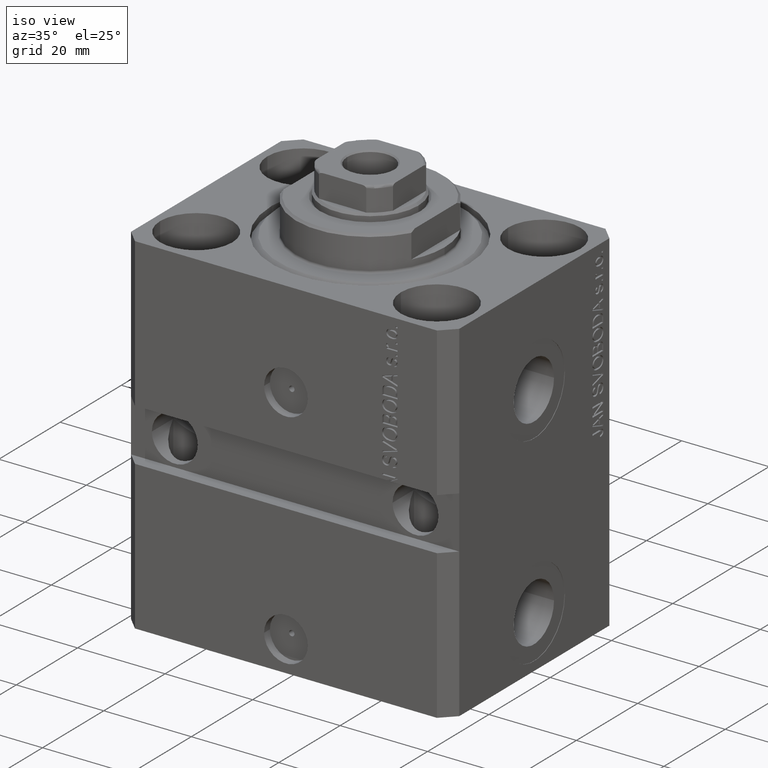
[diagram: clean part render]
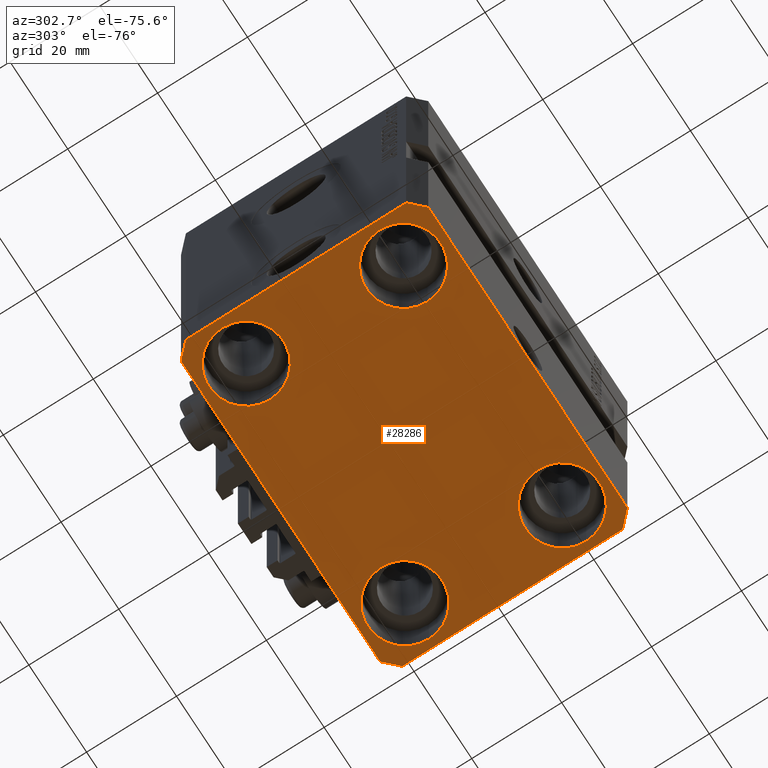
[diagram: tour spotlight — one face highlighted and labeled with its STEP entity id]
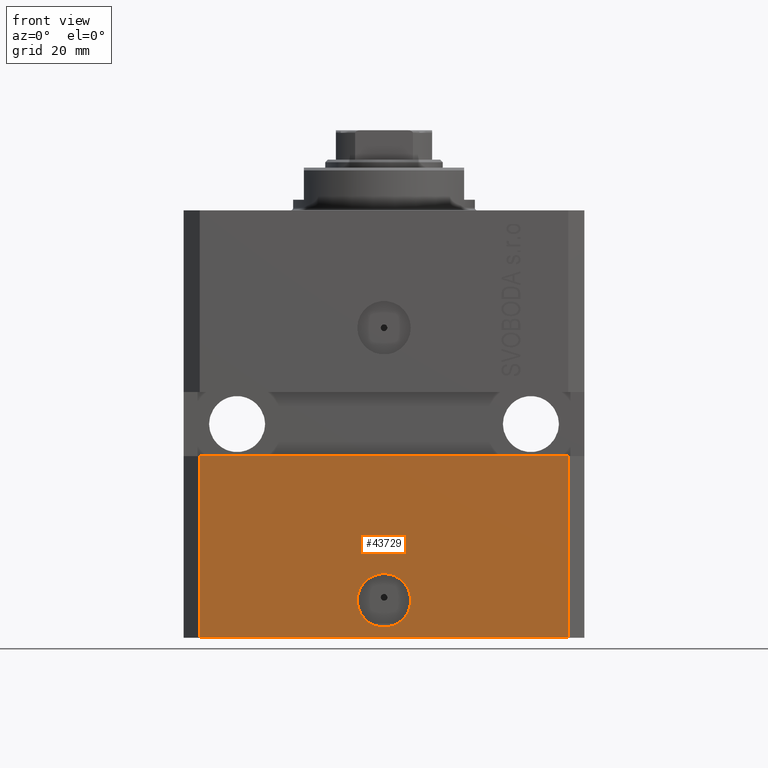
[diagram: tour spotlight — one face highlighted and labeled with its STEP entity id]
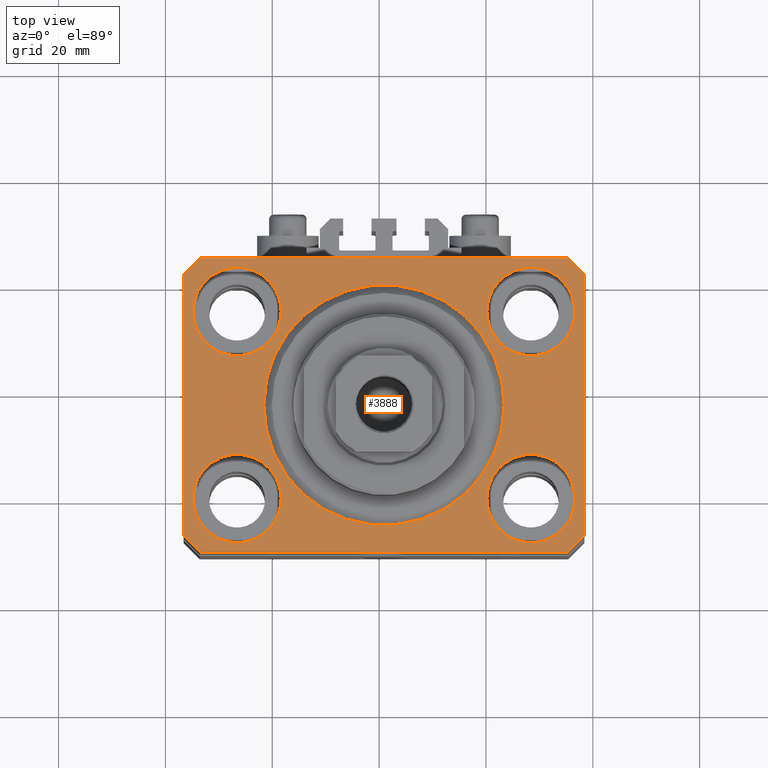
[diagram: tour spotlight — one face highlighted and labeled with its STEP entity id]
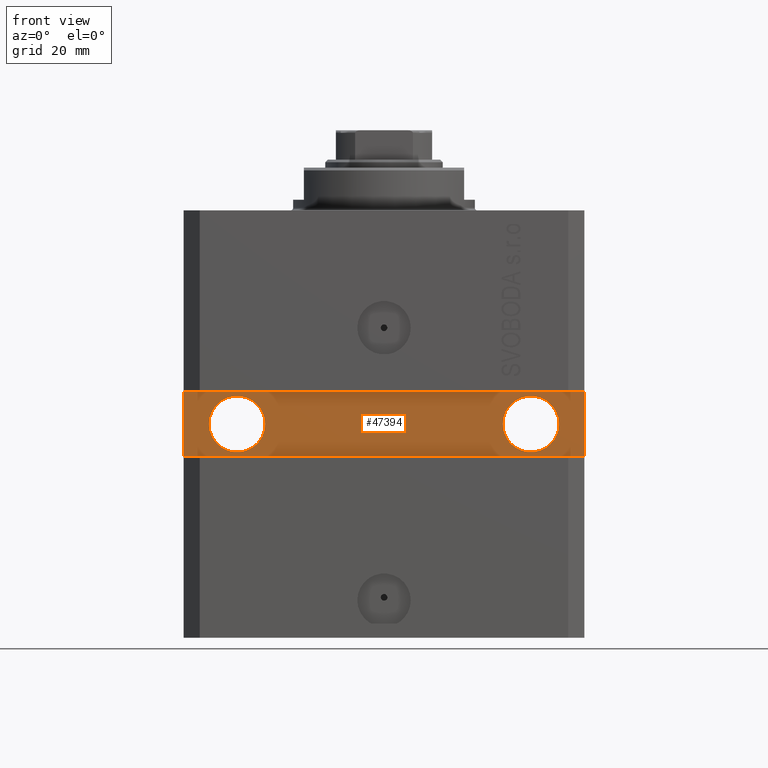
[diagram: tour spotlight — one face highlighted and labeled with its STEP entity id]
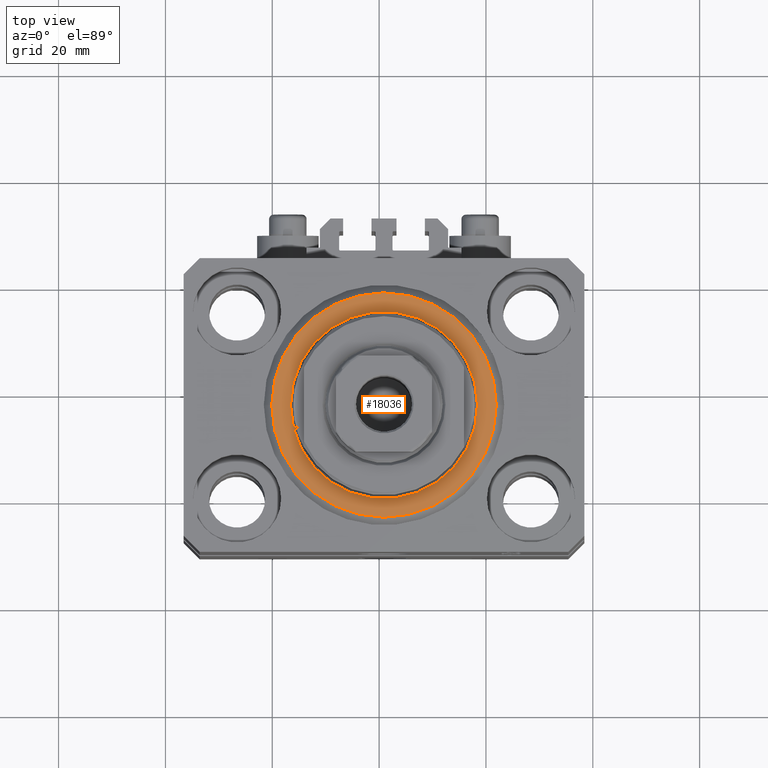
[diagram: tour spotlight — one face highlighted and labeled with its STEP entity id]
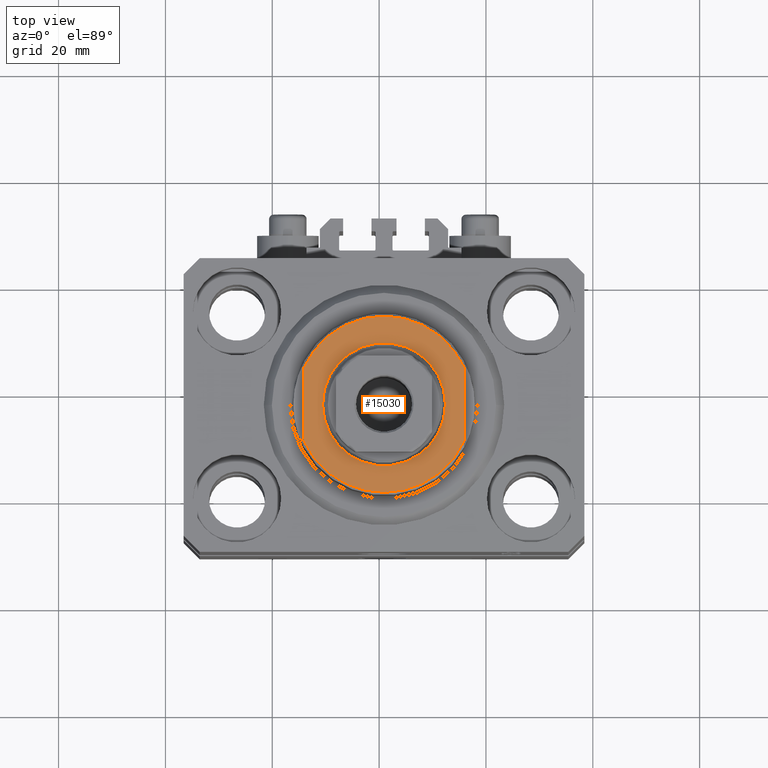
[diagram: tour spotlight — one face highlighted and labeled with its STEP entity id]
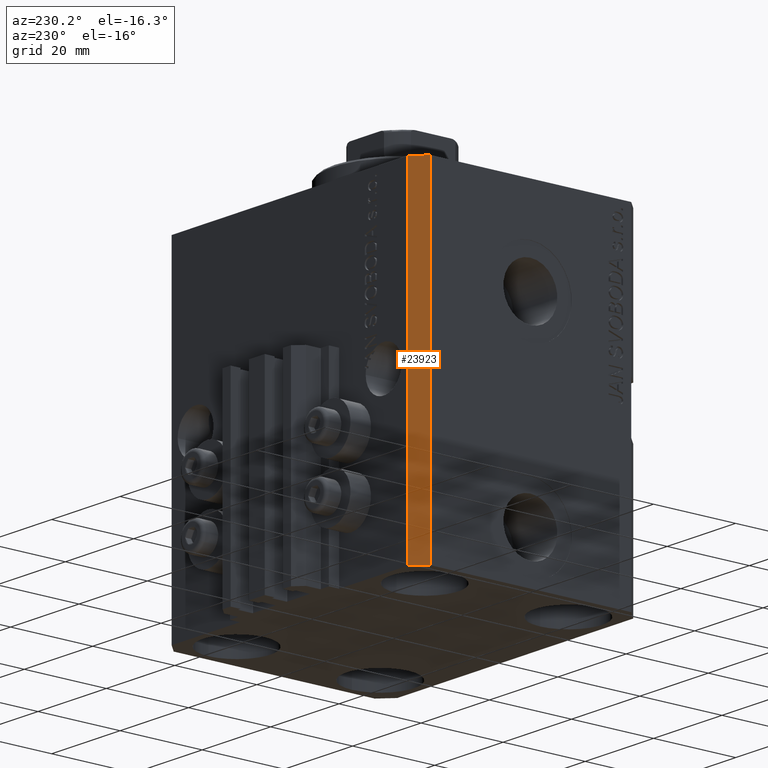
[diagram: tour spotlight — one face highlighted and labeled with its STEP entity id]
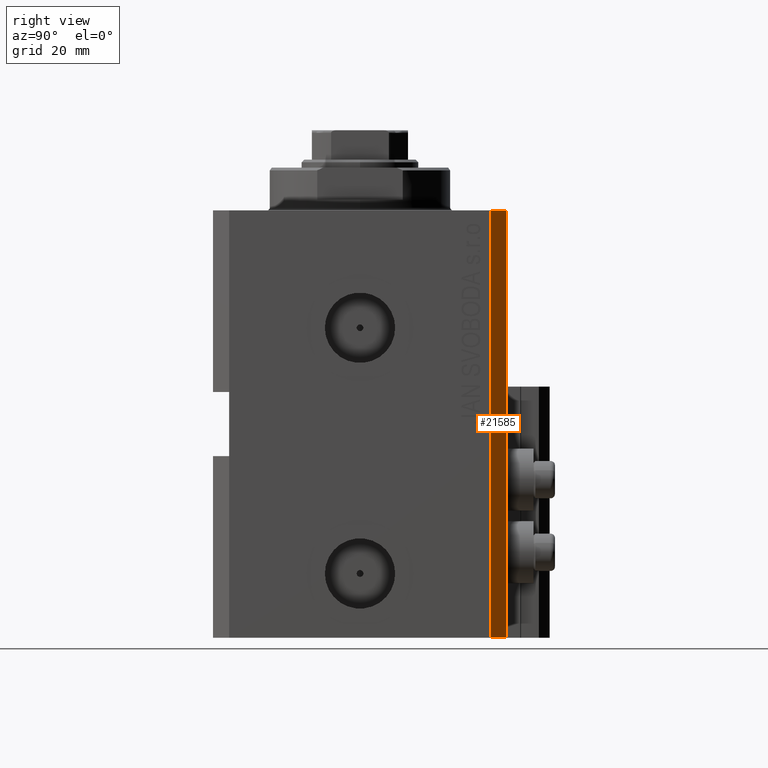
[diagram: tour spotlight — one face highlighted and labeled with its STEP entity id]
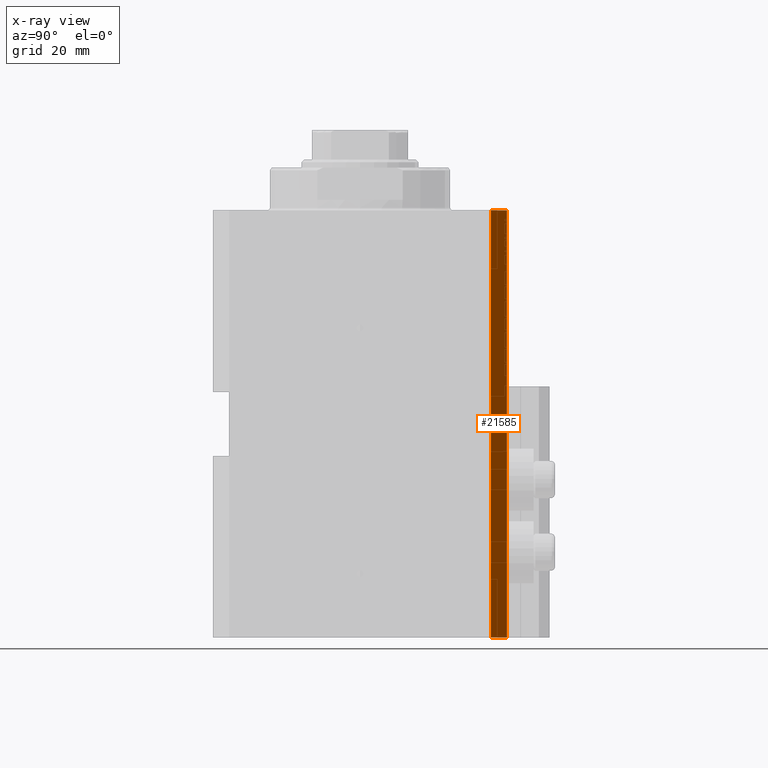
[diagram: x-ray of the same camera — body ghosted, this tour face saturated]
A machine part: a face-by-face anatomy tour. The part has 1080 B-rep faces; the first image is the clean iso view, then the 8 largest visible faces are spotlighted one at a time (largest first), each with its STEP entity span.

Face 1 — auxiliary view, entity #28286. In plain terms, the highlighted planar face has unit normal (0, 0, 1).
Definition (entity closure, byte-faithful):
#1041 = ORIENTED_EDGE ( 'NONE', *, *, #37772, .T. ) ;
#1663 = FACE_OUTER_BOUND ( 'NONE', #24452, .T. ) ;
#3213 = ORIENTED_EDGE ( 'NONE', *, *, #34445, .F. ) ;
#3609 = CARTESIAN_POINT ( 'NONE',  ( 35.74999999999999289, 17.50000000000001066, -80.00000000000000000 ) ) ;
#4189 = CARTESIAN_POINT ( 'NONE',  ( 37.50000000000051870, 24.49999999999995381, -80.00000000000000000 ) ) ;
#4438 = CARTESIAN_POINT ( 'NONE',  ( 27.50000000000000355, -17.50000000000000000, -80.00000000000000000 ) ) ;
#4613 = ORIENTED_EDGE ( 'NONE', *, *, #17066, .T. ) ;
#4705 = DIRECTION ( 'NONE',  ( 1.000000000000000000, 0.000000000000000000, 0.000000000000000000 ) ) ;
#4758 = CARTESIAN_POINT ( 'NONE',  ( -34.49999999999999289, 27.50000000000000000, -80.00000000000000000 ) ) ;
#5135 = LINE ( 'NONE', #27427, #6138 ) ;
#5588 = CIRCLE ( 'NONE', #36974, 8.249999999999992895 ) ;
#6138 = VECTOR ( 'NONE', #19762, 1000.000000000000114 ) ;
#6314 = ORIENTED_EDGE ( 'NONE', *, *, #10620, .F. ) ;
#6341 = LINE ( 'NONE', #31757, #30716 ) ;
#6609 = EDGE_LOOP ( 'NONE', ( #13990, #28150 ) ) ;
#6615 = VERTEX_POINT ( 'NONE', #32302 ) ;
#7090 = VECTOR ( 'NONE', #28814, 1000.000000000000000 ) ;
#7325 = DIRECTION ( 'NONE',  ( 1.076236605503979380E-14, 1.000000000000000000, 0.000000000000000000 ) ) ;
#7652 = AXIS2_PLACEMENT_3D ( 'NONE', #12389, #11042, #25426 ) ;
#7784 = AXIS2_PLACEMENT_3D ( 'NONE', #4438, #26980, #44445 ) ;
#8700 = ORIENTED_EDGE ( 'NONE', *, *, #22918, .T. ) ;
#9102 = DIRECTION ( 'NONE',  ( 1.000000000000000000, 0.000000000000000000, 0.000000000000000000 ) ) ;
#9324 = FACE_BOUND ( 'NONE', #6609, .T. ) ;
#9528 = DIRECTION ( 'NONE',  ( -0.000000000000000000, -0.000000000000000000, 1.000000000000000000 ) ) ;
#10476 = DIRECTION ( 'NONE',  ( 1.000000000000000000, 0.000000000000000000, 0.000000000000000000 ) ) ;
#10566 = LINE ( 'NONE', #35729, #31332 ) ;
#10620 = EDGE_CURVE ( 'NONE', #21709, #26618, #36538, .T. ) ;
#11042 = DIRECTION ( 'NONE',  ( -0.000000000000000000, -0.000000000000000000, 1.000000000000000000 ) ) ;
#11526 = LINE ( 'NONE', #37858, #37049 ) ;
#12389 = CARTESIAN_POINT ( 'NONE',  ( 27.49999999999999645, 17.50000000000001066, -80.00000000000000000 ) ) ;
#12609 = DIRECTION ( 'NONE',  ( -0.000000000000000000, -0.000000000000000000, 1.000000000000000000 ) ) ;
#12826 = CARTESIAN_POINT ( 'NONE',  ( -37.49999999999999289, 24.50000000000000000, -80.00000000000000000 ) ) ;
#12910 = LINE ( 'NONE', #37839, #22462 ) ;
#13121 = VERTEX_POINT ( 'NONE', #37877 ) ;
#13144 = CIRCLE ( 'NONE', #35356, 8.250000000000000000 ) ;
#13227 = VERTEX_POINT ( 'NONE', #17972 ) ;
#13840 = AXIS2_PLACEMENT_3D ( 'NONE', #28677, #20998, #25298 ) ;
#13906 = AXIS2_PLACEMENT_3D ( 'NONE', #46150, #9528, #10476 ) ;
#13990 = ORIENTED_EDGE ( 'NONE', *, *, #35542, .T. ) ;
#14186 = LINE ( 'NONE', #18252, #7090 ) ;
#14480 = CARTESIAN_POINT ( 'NONE',  ( -35.75000000000000711, -17.50000000000000000, -80.00000000000000000 ) ) ;
#15301 = EDGE_CURVE ( 'NONE', #19728, #13121, #6341, .T. ) ;
#15490 = ORIENTED_EDGE ( 'NONE', *, *, #16206, .F. ) ;
#15611 = EDGE_LOOP ( 'NONE', ( #1041, #35017 ) ) ;
#15984 = EDGE_CURVE ( 'NONE', #32457, #42390, #45982, .T. ) ;
#16206 = EDGE_CURVE ( 'NONE', #16354, #19728, #41583, .T. ) ;
#16284 = DIRECTION ( 'NONE',  ( 1.000000000000000000, 0.000000000000000000, -0.000000000000000000 ) ) ;
#16354 = VERTEX_POINT ( 'NONE', #37694 ) ;
#16518 = CARTESIAN_POINT ( 'NONE',  ( 0.000000000000000000, 0.000000000000000000, -80.00000000000000000 ) ) ;
#16755 = FACE_BOUND ( 'NONE', #34217, .T. ) ;
#17066 = EDGE_CURVE ( 'NONE', #6615, #45434, #13144, .T. ) ;
#17972 = CARTESIAN_POINT ( 'NONE',  ( -19.25000000000000355, -17.50000000000000000, -80.00000000000000000 ) ) ;
#17977 = AXIS2_PLACEMENT_3D ( 'NONE', #38043, #38515, #19856 ) ;
#18252 = CARTESIAN_POINT ( 'NONE',  ( -34.49999999999998579, -27.49999999999999645, -80.00000000000000000 ) ) ;
#19179 = CIRCLE ( 'NONE', #13840, 8.250000000000000000 ) ;
#19354 = CARTESIAN_POINT ( 'NONE',  ( 19.25000000000000000, -17.50000000000000000, -80.00000000000000000 ) ) ;
#19665 = CARTESIAN_POINT ( 'NONE',  ( -27.50000000000000355, -17.50000000000000000, -80.00000000000000000 ) ) ;
#19728 = VERTEX_POINT ( 'NONE', #47114 ) ;
#19762 = DIRECTION ( 'NONE',  ( 0.7071067811865474617, 0.7071067811865474617, 0.000000000000000000 ) ) ;
#19856 = DIRECTION ( 'NONE',  ( 1.000000000000000000, 0.000000000000000000, 0.000000000000000000 ) ) ;
#20998 = DIRECTION ( 'NONE',  ( -0.000000000000000000, -0.000000000000000000, 1.000000000000000000 ) ) ;
#21026 = AXIS2_PLACEMENT_3D ( 'NONE', #19665, #45723, #9102 ) ;
#21709 = VERTEX_POINT ( 'NONE', #43930 ) ;
#22377 = ORIENTED_EDGE ( 'NONE', *, *, #47310, .F. ) ;
#22462 = VECTOR ( 'NONE', #23719, 1000.000000000000000 ) ;
#22918 = EDGE_CURVE ( 'NONE', #30495, #37150, #5588, .T. ) ;
#23418 = ORIENTED_EDGE ( 'NONE', *, *, #39551, .F. ) ;
#23486 = FACE_BOUND ( 'NONE', #32083, .T. ) ;
#23719 = DIRECTION ( 'NONE',  ( -0.7071067811865471286, -0.7071067811865479058, 0.000000000000000000 ) ) ;
#23746 = VERTEX_POINT ( 'NONE', #46001 ) ;
#24452 = EDGE_LOOP ( 'NONE', ( #39559, #22377, #6314, #3213, #23418, #30141, #15490, #26149 ) ) ;
#24831 = CIRCLE ( 'NONE', #21026, 8.250000000000000000 ) ;
#25210 = AXIS2_PLACEMENT_3D ( 'NONE', #16518, #27319, #16284 ) ;
#25298 = DIRECTION ( 'NONE',  ( 1.000000000000000000, 0.000000000000000000, 0.000000000000000000 ) ) ;
#25426 = DIRECTION ( 'NONE',  ( 1.000000000000000000, 0.000000000000000000, 0.000000000000000000 ) ) ;
#26149 = ORIENTED_EDGE ( 'NONE', *, *, #42124, .F. ) ;
#26618 = VERTEX_POINT ( 'NONE', #4189 ) ;
#26980 = DIRECTION ( 'NONE',  ( -0.000000000000000000, -0.000000000000000000, 1.000000000000000000 ) ) ;
#27319 = DIRECTION ( 'NONE',  ( 0.000000000000000000, 0.000000000000000000, 1.000000000000000000 ) ) ;
#27427 = CARTESIAN_POINT ( 'NONE',  ( 34.49999999999999289, -27.49999999999999645, -80.00000000000000000 ) ) ;
#28127 = EDGE_CURVE ( 'NONE', #30406, #40100, #10566, .T. ) ;
#28150 = ORIENTED_EDGE ( 'NONE', *, *, #44337, .T. ) ;
#28286 = ADVANCED_FACE ( 'NONE', ( #9324, #31380, #16755, #23486, #1663 ), #45946, .F. ) ;
#28325 = CIRCLE ( 'NONE', #7652, 8.249999999999992895 ) ;
#28564 = DIRECTION ( 'NONE',  ( -1.000000000000000000, 0.000000000000000000, 0.000000000000000000 ) ) ;
#28677 = CARTESIAN_POINT ( 'NONE',  ( -27.50000000000000355, -17.50000000000000000, -80.00000000000000000 ) ) ;
#28727 = ORIENTED_EDGE ( 'NONE', *, *, #45226, .T. ) ;
#28814 = DIRECTION ( 'NONE',  ( 1.000000000000000000, 0.000000000000000000, 0.000000000000000000 ) ) ;
#30141 = ORIENTED_EDGE ( 'NONE', *, *, #15301, .F. ) ;
#30406 = VERTEX_POINT ( 'NONE', #31916 ) ;
#30495 = VERTEX_POINT ( 'NONE', #3609 ) ;
#30716 = VECTOR ( 'NONE', #46322, 1000.000000000000000 ) ;
#31332 = VECTOR ( 'NONE', #28564, 1000.000000000000000 ) ;
#31380 = FACE_BOUND ( 'NONE', #15611, .T. ) ;
#31757 = CARTESIAN_POINT ( 'NONE',  ( -37.49999999999999289, -24.50000000000000000, -80.00000000000000000 ) ) ;
#31916 = CARTESIAN_POINT ( 'NONE',  ( 34.50000000000056843, 27.50000000000000000, -80.00000000000000000 ) ) ;
#32083 = EDGE_LOOP ( 'NONE', ( #28727, #4613 ) ) ;
#32302 = CARTESIAN_POINT ( 'NONE',  ( -19.25000000000000355, 17.50000000000000000, -80.00000000000000000 ) ) ;
#32457 = VERTEX_POINT ( 'NONE', #39641 ) ;
#34025 = EDGE_CURVE ( 'NONE', #37150, #30495, #28325, .T. ) ;
#34217 = EDGE_LOOP ( 'NONE', ( #40806, #8700 ) ) ;
#34278 = CARTESIAN_POINT ( 'NONE',  ( 19.25000000000000000, 17.50000000000001066, -80.00000000000000000 ) ) ;
#34445 = EDGE_CURVE ( 'NONE', #23746, #21709, #5135, .T. ) ;
#34881 = DIRECTION ( 'NONE',  ( 0.000000000000000000, -1.000000000000000000, 0.000000000000000000 ) ) ;
#35017 = ORIENTED_EDGE ( 'NONE', *, *, #15984, .T. ) ;
#35356 = AXIS2_PLACEMENT_3D ( 'NONE', #38931, #35596, #46564 ) ;
#35542 = EDGE_CURVE ( 'NONE', #45613, #13227, #19179, .T. ) ;
#35596 = DIRECTION ( 'NONE',  ( -0.000000000000000000, -0.000000000000000000, 1.000000000000000000 ) ) ;
#35729 = CARTESIAN_POINT ( 'NONE',  ( 34.50000000000056843, 27.50000000000000000, -80.00000000000000000 ) ) ;
#36310 = CARTESIAN_POINT ( 'NONE',  ( 37.49999999999999289, -24.50000000000000000, -80.00000000000000000 ) ) ;
#36538 = LINE ( 'NONE', #36310, #43538 ) ;
#36974 = AXIS2_PLACEMENT_3D ( 'NONE', #41589, #12609, #4705 ) ;
#37049 = VECTOR ( 'NONE', #41686, 1000.000000000000114 ) ;
#37150 = VERTEX_POINT ( 'NONE', #34278 ) ;
#37694 = CARTESIAN_POINT ( 'NONE',  ( -37.49999999999999289, 24.50000000000000000, -80.00000000000000000 ) ) ;
#37772 = EDGE_CURVE ( 'NONE', #42390, #32457, #44496, .T. ) ;
#37839 = CARTESIAN_POINT ( 'NONE',  ( -34.49999999999999289, 27.50000000000000000, -80.00000000000000000 ) ) ;
#37858 = CARTESIAN_POINT ( 'NONE',  ( 37.50000000000051870, 24.49999999999995381, -80.00000000000000000 ) ) ;
#37877 = CARTESIAN_POINT ( 'NONE',  ( -34.49999999999998579, -27.49999999999999645, -80.00000000000000000 ) ) ;
#38043 = CARTESIAN_POINT ( 'NONE',  ( -27.50000000000000355, 17.50000000000000000, -80.00000000000000000 ) ) ;
#38515 = DIRECTION ( 'NONE',  ( -0.000000000000000000, -0.000000000000000000, 1.000000000000000000 ) ) ;
#38931 = CARTESIAN_POINT ( 'NONE',  ( -27.50000000000000355, 17.50000000000000000, -80.00000000000000000 ) ) ;
#39551 = EDGE_CURVE ( 'NONE', #13121, #23746, #14186, .T. ) ;
#39559 = ORIENTED_EDGE ( 'NONE', *, *, #28127, .F. ) ;
#39641 = CARTESIAN_POINT ( 'NONE',  ( 35.75000000000000711, -17.50000000000000000, -80.00000000000000000 ) ) ;
#40100 = VERTEX_POINT ( 'NONE', #4758 ) ;
#40806 = ORIENTED_EDGE ( 'NONE', *, *, #34025, .T. ) ;
#41583 = LINE ( 'NONE', #12826, #45240 ) ;
#41589 = CARTESIAN_POINT ( 'NONE',  ( 27.49999999999999645, 17.50000000000001066, -80.00000000000000000 ) ) ;
#41686 = DIRECTION ( 'NONE',  ( -0.7071067811865356934, 0.7071067811865594521, 0.000000000000000000 ) ) ;
#42124 = EDGE_CURVE ( 'NONE', #40100, #16354, #12910, .T. ) ;
#42286 = CARTESIAN_POINT ( 'NONE',  ( -35.75000000000000711, 17.50000000000000000, -80.00000000000000000 ) ) ;
#42390 = VERTEX_POINT ( 'NONE', #19354 ) ;
#43538 = VECTOR ( 'NONE', #7325, 1000.000000000000000 ) ;
#43930 = CARTESIAN_POINT ( 'NONE',  ( 37.49999999999999289, -24.50000000000000000, -80.00000000000000000 ) ) ;
#44337 = EDGE_CURVE ( 'NONE', #13227, #45613, #24831, .T. ) ;
#44445 = DIRECTION ( 'NONE',  ( 1.000000000000000000, 0.000000000000000000, 0.000000000000000000 ) ) ;
#44496 = CIRCLE ( 'NONE', #7784, 8.250000000000000000 ) ;
#45226 = EDGE_CURVE ( 'NONE', #45434, #6615, #45477, .T. ) ;
#45240 = VECTOR ( 'NONE', #34881, 1000.000000000000000 ) ;
#45434 = VERTEX_POINT ( 'NONE', #42286 ) ;
#45477 = CIRCLE ( 'NONE', #17977, 8.250000000000000000 ) ;
#45613 = VERTEX_POINT ( 'NONE', #14480 ) ;
#45723 = DIRECTION ( 'NONE',  ( -0.000000000000000000, -0.000000000000000000, 1.000000000000000000 ) ) ;
#45946 = PLANE ( 'NONE',  #25210 ) ;
#45982 = CIRCLE ( 'NONE', #13906, 8.250000000000000000 ) ;
#46001 = CARTESIAN_POINT ( 'NONE',  ( 34.49999999999999289, -27.49999999999999645, -80.00000000000000000 ) ) ;
#46150 = CARTESIAN_POINT ( 'NONE',  ( 27.50000000000000355, -17.50000000000000000, -80.00000000000000000 ) ) ;
#46322 = DIRECTION ( 'NONE',  ( 0.7071067811865483499, -0.7071067811865466846, 0.000000000000000000 ) ) ;
#46564 = DIRECTION ( 'NONE',  ( 1.000000000000000000, 0.000000000000000000, 0.000000000000000000 ) ) ;
#47114 = CARTESIAN_POINT ( 'NONE',  ( -37.49999999999999289, -24.50000000000000000, -80.00000000000000000 ) ) ;
#47310 = EDGE_CURVE ( 'NONE', #26618, #30406, #11526, .T. ) ;

Face 2 — front view, entity #43729. In plain terms, the highlighted planar face has unit normal (0, -1, 0).
Definition (entity closure, byte-faithful):
#364 = EDGE_CURVE ( 'NONE', #35170, #45616, #47155, .T. ) ;
#379 = FACE_BOUND ( 'NONE', #29587, .T. ) ;
#4320 = DIRECTION ( 'NONE',  ( 1.176083712526788232E-16, -1.000000000000000000, 0.000000000000000000 ) ) ;
#4793 = DIRECTION ( 'NONE',  ( 1.000000000000000000, 0.000000000000000000, 0.000000000000000000 ) ) ;
#4803 = CARTESIAN_POINT ( 'NONE',  ( -34.49999999999998579, -27.50000000000000000, -46.00000000000000000 ) ) ;
#6944 = CARTESIAN_POINT ( 'NONE',  ( 0.000000000000000000, -27.49999999999999645, -73.00000000000000000 ) ) ;
#7090 = VECTOR ( 'NONE', #28814, 1000.000000000000000 ) ;
#8726 = ORIENTED_EDGE ( 'NONE', *, *, #364, .F. ) ;
#10560 = VECTOR ( 'NONE', #40831, 1000.000000000000000 ) ;
#10693 = PLANE ( 'NONE',  #24071 ) ;
#11145 = LINE ( 'NONE', #33188, #10560 ) ;
#11166 = FACE_OUTER_BOUND ( 'NONE', #24301, .T. ) ;
#13121 = VERTEX_POINT ( 'NONE', #37877 ) ;
#14135 = DIRECTION ( 'NONE',  ( 1.176083712526788232E-16, -1.000000000000000000, 0.000000000000000000 ) ) ;
#14186 = LINE ( 'NONE', #18252, #7090 ) ;
#14995 = DIRECTION ( 'NONE',  ( 0.000000000000000000, -1.000000000000000000, 0.000000000000000000 ) ) ;
#15553 = VECTOR ( 'NONE', #20830, 1000.000000000000000 ) ;
#17832 = AXIS2_PLACEMENT_3D ( 'NONE', #6944, #14135, #35707 ) ;
#18252 = CARTESIAN_POINT ( 'NONE',  ( -34.49999999999998579, -27.49999999999999645, -80.00000000000000000 ) ) ;
#18601 = CARTESIAN_POINT ( 'NONE',  ( -34.49999999999998579, -27.49999999999999645, -80.00000000000000000 ) ) ;
#20571 = DIRECTION ( 'NONE',  ( 1.000000000000000000, 9.251858538542972814E-17, 0.000000000000000000 ) ) ;
#20830 = DIRECTION ( 'NONE',  ( 0.000000000000000000, 0.000000000000000000, 1.000000000000000000 ) ) ;
#21768 = ORIENTED_EDGE ( 'NONE', *, *, #26720, .F. ) ;
#23246 = EDGE_CURVE ( 'NONE', #45616, #35170, #33922, .T. ) ;
#23323 = ORIENTED_EDGE ( 'NONE', *, *, #40649, .T. ) ;
#23746 = VERTEX_POINT ( 'NONE', #46001 ) ;
#24071 = AXIS2_PLACEMENT_3D ( 'NONE', #18601, #14995, #29625 ) ;
#24301 = EDGE_LOOP ( 'NONE', ( #24853, #21768, #30864, #23323 ) ) ;
#24414 = CARTESIAN_POINT ( 'NONE',  ( -37.50000000000000000, -27.50000000000000000, -46.00000000000000000 ) ) ;
#24853 = ORIENTED_EDGE ( 'NONE', *, *, #26525, .F. ) ;
#26525 = EDGE_CURVE ( 'NONE', #47260, #43642, #47053, .T. ) ;
#26720 = EDGE_CURVE ( 'NONE', #13121, #47260, #11145, .T. ) ;
#28814 = DIRECTION ( 'NONE',  ( 1.000000000000000000, 0.000000000000000000, 0.000000000000000000 ) ) ;
#29116 = CARTESIAN_POINT ( 'NONE',  ( -5.000000000000006217, -27.49999999999999645, -73.00000000000000000 ) ) ;
#29587 = EDGE_LOOP ( 'NONE', ( #8726, #35196 ) ) ;
#29625 = DIRECTION ( 'NONE',  ( 0.000000000000000000, -0.000000000000000000, -1.000000000000000000 ) ) ;
#30864 = ORIENTED_EDGE ( 'NONE', *, *, #39551, .T. ) ;
#33188 = CARTESIAN_POINT ( 'NONE',  ( -34.49999999999998579, -27.49999999999999645, -80.00000000000000000 ) ) ;
#33922 = CIRCLE ( 'NONE', #17832, 5.000000000000006217 ) ;
#35170 = VERTEX_POINT ( 'NONE', #44596 ) ;
#35196 = ORIENTED_EDGE ( 'NONE', *, *, #23246, .F. ) ;
#35707 = DIRECTION ( 'NONE',  ( 1.000000000000000000, 0.000000000000000000, 0.000000000000000000 ) ) ;
#37144 = CARTESIAN_POINT ( 'NONE',  ( 0.000000000000000000, -27.49999999999999645, -73.00000000000000000 ) ) ;
#37877 = CARTESIAN_POINT ( 'NONE',  ( -34.49999999999998579, -27.49999999999999645, -80.00000000000000000 ) ) ;
#38317 = LINE ( 'NONE', #39022, #15553 ) ;
#39022 = CARTESIAN_POINT ( 'NONE',  ( 34.49999999999999289, -27.49999999999999645, -80.00000000000000000 ) ) ;
#39551 = EDGE_CURVE ( 'NONE', #13121, #23746, #14186, .T. ) ;
#40649 = EDGE_CURVE ( 'NONE', #23746, #43642, #38317, .T. ) ;
#40831 = DIRECTION ( 'NONE',  ( 0.000000000000000000, 0.000000000000000000, 1.000000000000000000 ) ) ;
#42694 = VECTOR ( 'NONE', #20571, 1000.000000000000000 ) ;
#43642 = VERTEX_POINT ( 'NONE', #47083 ) ;
#43729 = ADVANCED_FACE ( 'NONE', ( #379, #11166 ), #10693, .T. ) ;
#44098 = AXIS2_PLACEMENT_3D ( 'NONE', #37144, #4320, #4793 ) ;
#44596 = CARTESIAN_POINT ( 'NONE',  ( 5.000000000000006217, -27.49999999999999645, -73.00000000000000000 ) ) ;
#45616 = VERTEX_POINT ( 'NONE', #29116 ) ;
#46001 = CARTESIAN_POINT ( 'NONE',  ( 34.49999999999999289, -27.49999999999999645, -80.00000000000000000 ) ) ;
#47053 = LINE ( 'NONE', #24414, #42694 ) ;
#47083 = CARTESIAN_POINT ( 'NONE',  ( 34.49999999999999289, -27.49999999999999289, -46.00000000000000000 ) ) ;
#47155 = CIRCLE ( 'NONE', #44098, 5.000000000000006217 ) ;
#47260 = VERTEX_POINT ( 'NONE', #4803 ) ;

Face 3 — top view, entity #3888. In plain terms, the highlighted planar face has unit normal (0, 0, 1).
Definition (entity closure, byte-faithful):
#126 = EDGE_CURVE ( 'NONE', #37025, #27641, #8145, .T. ) ;
#283 = CIRCLE ( 'NONE', #38513, 22.50000000000000355 ) ;
#398 = VERTEX_POINT ( 'NONE', #22305 ) ;
#1190 = DIRECTION ( 'NONE',  ( 0.000000000000000000, 0.000000000000000000, 1.000000000000000000 ) ) ;
#1375 = EDGE_CURVE ( 'NONE', #41574, #39575, #11212, .T. ) ;
#1778 = CARTESIAN_POINT ( 'NONE',  ( -34.49999999999999289, 27.50000000000000000, 0.000000000000000000 ) ) ;
#1781 = AXIS2_PLACEMENT_3D ( 'NONE', #36373, #32096, #43789 ) ;
#2124 = DIRECTION ( 'NONE',  ( 0.000000000000000000, 0.000000000000000000, 1.000000000000000000 ) ) ;
#2133 = CARTESIAN_POINT ( 'NONE',  ( -35.75000000000000711, -17.50000000000000000, 0.000000000000000000 ) ) ;
#2209 = CARTESIAN_POINT ( 'NONE',  ( 37.49999999999999289, -24.50000000000000000, 0.000000000000000000 ) ) ;
#2253 = ORIENTED_EDGE ( 'NONE', *, *, #42219, .F. ) ;
#2365 = DIRECTION ( 'NONE',  ( 1.000000000000000000, 0.000000000000000000, 0.000000000000000000 ) ) ;
#2483 = DIRECTION ( 'NONE',  ( 0.000000000000000000, 0.000000000000000000, 1.000000000000000000 ) ) ;
#2738 = CARTESIAN_POINT ( 'NONE',  ( -37.49999999999999289, -24.50000000000000000, 0.000000000000000000 ) ) ;
#3167 = PLANE ( 'NONE',  #19764 ) ;
#3384 = CARTESIAN_POINT ( 'NONE',  ( -35.75000000000000711, 17.50000000000000000, 0.000000000000000000 ) ) ;
#3672 = ORIENTED_EDGE ( 'NONE', *, *, #18714, .T. ) ;
#3888 = ADVANCED_FACE ( 'NONE', ( #17551, #35529, #39345, #43170, #46981, #17314 ), #3167, .T. ) ;
#3985 = CIRCLE ( 'NONE', #41461, 8.249999999999992895 ) ;
#4090 = CIRCLE ( 'NONE', #28600, 8.250000000000000000 ) ;
#4630 = ORIENTED_EDGE ( 'NONE', *, *, #16697, .F. ) ;
#4647 = CARTESIAN_POINT ( 'NONE',  ( -19.25000000000000355, -17.50000000000000000, 0.000000000000000000 ) ) ;
#5462 = VERTEX_POINT ( 'NONE', #22453 ) ;
#5727 = VERTEX_POINT ( 'NONE', #4647 ) ;
#6111 = CARTESIAN_POINT ( 'NONE',  ( -37.49999999999999289, 24.50000000000000000, 0.000000000000000000 ) ) ;
#6383 = CARTESIAN_POINT ( 'NONE',  ( 22.50000000000000355, 0.000000000000000000, 0.000000000000000000 ) ) ;
#7021 = DIRECTION ( 'NONE',  ( 1.000000000000000000, 0.000000000000000000, 0.000000000000000000 ) ) ;
#7691 = DIRECTION ( 'NONE',  ( 0.7071067811865474617, 0.7071067811865474617, 0.000000000000000000 ) ) ;
#8145 = CIRCLE ( 'NONE', #15797, 8.250000000000000000 ) ;
#8344 = EDGE_LOOP ( 'NONE', ( #24083, #47106 ) ) ;
#9147 = DIRECTION ( 'NONE',  ( 0.000000000000000000, 0.000000000000000000, 1.000000000000000000 ) ) ;
#9180 = CIRCLE ( 'NONE', #42072, 8.250000000000000000 ) ;
#9624 = DIRECTION ( 'NONE',  ( 1.000000000000000000, 0.000000000000000000, 0.000000000000000000 ) ) ;
#9713 = EDGE_CURVE ( 'NONE', #18052, #398, #16214, .T. ) ;
#9842 = DIRECTION ( 'NONE',  ( 1.000000000000000000, 0.000000000000000000, 0.000000000000000000 ) ) ;
#10033 = CARTESIAN_POINT ( 'NONE',  ( -27.50000000000000355, -17.50000000000000000, 0.000000000000000000 ) ) ;
#10364 = DIRECTION ( 'NONE',  ( 1.000000000000000000, 0.000000000000000000, -0.000000000000000000 ) ) ;
#10721 = ORIENTED_EDGE ( 'NONE', *, *, #28370, .F. ) ;
#10775 = EDGE_CURVE ( 'NONE', #398, #16307, #19298, .T. ) ;
#10883 = CARTESIAN_POINT ( 'NONE',  ( 35.74999999999999289, 17.50000000000001066, 0.000000000000000000 ) ) ;
#11212 = LINE ( 'NONE', #22951, #30377 ) ;
#11503 = CARTESIAN_POINT ( 'NONE',  ( 27.50000000000000355, -17.50000000000000000, 0.000000000000000000 ) ) ;
#12007 = DIRECTION ( 'NONE',  ( 0.000000000000000000, 0.000000000000000000, 1.000000000000000000 ) ) ;
#12386 = ORIENTED_EDGE ( 'NONE', *, *, #126, .F. ) ;
#12523 = ORIENTED_EDGE ( 'NONE', *, *, #30128, .F. ) ;
#15315 = VECTOR ( 'NONE', #33383, 1000.000000000000114 ) ;
#15351 = VERTEX_POINT ( 'NONE', #10883 ) ;
#15508 = EDGE_CURVE ( 'NONE', #31287, #40007, #27631, .T. ) ;
#15797 = AXIS2_PLACEMENT_3D ( 'NONE', #27852, #9147, #9624 ) ;
#15810 = DIRECTION ( 'NONE',  ( 1.000000000000000000, 0.000000000000000000, 0.000000000000000000 ) ) ;
#16214 = LINE ( 'NONE', #19105, #32047 ) ;
#16307 = VERTEX_POINT ( 'NONE', #6111 ) ;
#16697 = EDGE_CURVE ( 'NONE', #15351, #5462, #3985, .T. ) ;
#17314 = FACE_OUTER_BOUND ( 'NONE', #43309, .T. ) ;
#17551 = FACE_BOUND ( 'NONE', #23735, .T. ) ;
#18052 = VERTEX_POINT ( 'NONE', #24404 ) ;
#18237 = LINE ( 'NONE', #40500, #30161 ) ;
#18714 = EDGE_CURVE ( 'NONE', #16307, #38041, #35182, .T. ) ;
#18943 = DIRECTION ( 'NONE',  ( 0.000000000000000000, 0.000000000000000000, 1.000000000000000000 ) ) ;
#18987 = CARTESIAN_POINT ( 'NONE',  ( -27.50000000000000355, -17.50000000000000000, 0.000000000000000000 ) ) ;
#19105 = CARTESIAN_POINT ( 'NONE',  ( 34.50000000000056843, 27.50000000000000000, 0.000000000000000000 ) ) ;
#19223 = CARTESIAN_POINT ( 'NONE',  ( 35.75000000000000711, -17.50000000000000000, 0.000000000000000000 ) ) ;
#19298 = LINE ( 'NONE', #1778, #25203 ) ;
#19764 = AXIS2_PLACEMENT_3D ( 'NONE', #28110, #46497, #10364 ) ;
#19908 = CIRCLE ( 'NONE', #42076, 8.250000000000000000 ) ;
#20555 = VERTEX_POINT ( 'NONE', #43139 ) ;
#21315 = VERTEX_POINT ( 'NONE', #27571 ) ;
#21433 = ORIENTED_EDGE ( 'NONE', *, *, #10775, .T. ) ;
#21580 = CARTESIAN_POINT ( 'NONE',  ( 27.49999999999999645, 17.50000000000001066, 0.000000000000000000 ) ) ;
#22305 = CARTESIAN_POINT ( 'NONE',  ( -34.49999999999999289, 27.50000000000000000, 0.000000000000000000 ) ) ;
#22453 = CARTESIAN_POINT ( 'NONE',  ( 19.25000000000000000, 17.50000000000001066, 0.000000000000000000 ) ) ;
#22695 = ORIENTED_EDGE ( 'NONE', *, *, #1375, .T. ) ;
#22951 = CARTESIAN_POINT ( 'NONE',  ( -34.49999999999998579, -27.49999999999999645, 0.000000000000000000 ) ) ;
#23267 = EDGE_LOOP ( 'NONE', ( #4630, #27402 ) ) ;
#23291 = VECTOR ( 'NONE', #36960, 1000.000000000000000 ) ;
#23376 = DIRECTION ( 'NONE',  ( -0.7071067811865471286, -0.7071067811865479058, 0.000000000000000000 ) ) ;
#23735 = EDGE_LOOP ( 'NONE', ( #27488, #2253 ) ) ;
#23774 = ORIENTED_EDGE ( 'NONE', *, *, #15508, .T. ) ;
#23897 = EDGE_CURVE ( 'NONE', #42543, #20555, #283, .T. ) ;
#24083 = ORIENTED_EDGE ( 'NONE', *, *, #23897, .F. ) ;
#24168 = EDGE_CURVE ( 'NONE', #20555, #42543, #33194, .T. ) ;
#24392 = CIRCLE ( 'NONE', #25178, 8.249999999999992895 ) ;
#24404 = CARTESIAN_POINT ( 'NONE',  ( 34.50000000000056843, 27.50000000000000000, 0.000000000000000000 ) ) ;
#24542 = CARTESIAN_POINT ( 'NONE',  ( -27.50000000000000355, 17.50000000000000000, 0.000000000000000000 ) ) ;
#24810 = EDGE_CURVE ( 'NONE', #39575, #31287, #18237, .T. ) ;
#25178 = AXIS2_PLACEMENT_3D ( 'NONE', #21580, #42653, #9842 ) ;
#25203 = VECTOR ( 'NONE', #23376, 1000.000000000000000 ) ;
#25949 = DIRECTION ( 'NONE',  ( 1.000000000000000000, 0.000000000000000000, 0.000000000000000000 ) ) ;
#25953 = ORIENTED_EDGE ( 'NONE', *, *, #29524, .F. ) ;
#26134 = DIRECTION ( 'NONE',  ( 1.000000000000000000, 0.000000000000000000, 0.000000000000000000 ) ) ;
#26831 = CARTESIAN_POINT ( 'NONE',  ( -37.49999999999999289, 24.50000000000000000, 0.000000000000000000 ) ) ;
#26848 = CARTESIAN_POINT ( 'NONE',  ( 27.50000000000000355, -17.50000000000000000, 0.000000000000000000 ) ) ;
#26884 = VERTEX_POINT ( 'NONE', #19223 ) ;
#26919 = VECTOR ( 'NONE', #35282, 1000.000000000000000 ) ;
#27095 = CARTESIAN_POINT ( 'NONE',  ( 0.000000000000000000, 0.000000000000000000, 0.000000000000000000 ) ) ;
#27218 = EDGE_CURVE ( 'NONE', #5462, #15351, #24392, .T. ) ;
#27402 = ORIENTED_EDGE ( 'NONE', *, *, #27218, .F. ) ;
#27488 = ORIENTED_EDGE ( 'NONE', *, *, #33682, .F. ) ;
#27506 = CIRCLE ( 'NONE', #33621, 8.250000000000000000 ) ;
#27571 = CARTESIAN_POINT ( 'NONE',  ( 19.25000000000000000, -17.50000000000000000, 0.000000000000000000 ) ) ;
#27631 = LINE ( 'NONE', #2209, #26919 ) ;
#27641 = VERTEX_POINT ( 'NONE', #40421 ) ;
#27852 = CARTESIAN_POINT ( 'NONE',  ( -27.50000000000000355, 17.50000000000000000, 0.000000000000000000 ) ) ;
#28110 = CARTESIAN_POINT ( 'NONE',  ( 0.000000000000000000, 0.000000000000000000, 0.000000000000000000 ) ) ;
#28370 = EDGE_CURVE ( 'NONE', #21315, #26884, #27506, .T. ) ;
#28600 = AXIS2_PLACEMENT_3D ( 'NONE', #10033, #2124, #2365 ) ;
#29524 = EDGE_CURVE ( 'NONE', #26884, #21315, #42795, .T. ) ;
#29797 = LINE ( 'NONE', #37431, #23291 ) ;
#29996 = CARTESIAN_POINT ( 'NONE',  ( 27.49999999999999645, 17.50000000000001066, 0.000000000000000000 ) ) ;
#30128 = EDGE_CURVE ( 'NONE', #27641, #37025, #19908, .T. ) ;
#30161 = VECTOR ( 'NONE', #7691, 1000.000000000000114 ) ;
#30285 = EDGE_CURVE ( 'NONE', #40007, #18052, #36717, .T. ) ;
#30377 = VECTOR ( 'NONE', #33022, 1000.000000000000000 ) ;
#30448 = CARTESIAN_POINT ( 'NONE',  ( 37.49999999999999289, -24.50000000000000000, 0.000000000000000000 ) ) ;
#31042 = ORIENTED_EDGE ( 'NONE', *, *, #43027, .T. ) ;
#31287 = VERTEX_POINT ( 'NONE', #30448 ) ;
#32047 = VECTOR ( 'NONE', #33730, 1000.000000000000000 ) ;
#32096 = DIRECTION ( 'NONE',  ( 0.000000000000000000, 0.000000000000000000, 1.000000000000000000 ) ) ;
#32680 = ORIENTED_EDGE ( 'NONE', *, *, #24810, .T. ) ;
#33022 = DIRECTION ( 'NONE',  ( 1.000000000000000000, 0.000000000000000000, 0.000000000000000000 ) ) ;
#33194 = CIRCLE ( 'NONE', #1781, 22.50000000000000355 ) ;
#33298 = CARTESIAN_POINT ( 'NONE',  ( 37.50000000000051870, 24.49999999999995381, 0.000000000000000000 ) ) ;
#33383 = DIRECTION ( 'NONE',  ( -0.7071067811865356934, 0.7071067811865594521, 0.000000000000000000 ) ) ;
#33621 = AXIS2_PLACEMENT_3D ( 'NONE', #26848, #1190, #15810 ) ;
#33682 = EDGE_CURVE ( 'NONE', #5727, #46586, #9180, .T. ) ;
#33730 = DIRECTION ( 'NONE',  ( -1.000000000000000000, 0.000000000000000000, 0.000000000000000000 ) ) ;
#35182 = LINE ( 'NONE', #26831, #41531 ) ;
#35282 = DIRECTION ( 'NONE',  ( 1.076236605503979380E-14, 1.000000000000000000, 0.000000000000000000 ) ) ;
#35529 = FACE_BOUND ( 'NONE', #37647, .T. ) ;
#36373 = CARTESIAN_POINT ( 'NONE',  ( 0.000000000000000000, 0.000000000000000000, 0.000000000000000000 ) ) ;
#36614 = EDGE_LOOP ( 'NONE', ( #12523, #12386 ) ) ;
#36712 = DIRECTION ( 'NONE',  ( 0.000000000000000000, 0.000000000000000000, 1.000000000000000000 ) ) ;
#36717 = LINE ( 'NONE', #40309, #15315 ) ;
#36902 = DIRECTION ( 'NONE',  ( 1.000000000000000000, 0.000000000000000000, 0.000000000000000000 ) ) ;
#36960 = DIRECTION ( 'NONE',  ( 0.7071067811865483499, -0.7071067811865466846, 0.000000000000000000 ) ) ;
#37025 = VERTEX_POINT ( 'NONE', #3384 ) ;
#37431 = CARTESIAN_POINT ( 'NONE',  ( -37.49999999999999289, -24.50000000000000000, 0.000000000000000000 ) ) ;
#37647 = EDGE_LOOP ( 'NONE', ( #25953, #10721 ) ) ;
#38041 = VERTEX_POINT ( 'NONE', #2738 ) ;
#38097 = DIRECTION ( 'NONE',  ( 1.000000000000000000, 0.000000000000000000, 0.000000000000000000 ) ) ;
#38513 = AXIS2_PLACEMENT_3D ( 'NONE', #27095, #18943, #36902 ) ;
#39345 = FACE_BOUND ( 'NONE', #23267, .T. ) ;
#39575 = VERTEX_POINT ( 'NONE', #47207 ) ;
#40007 = VERTEX_POINT ( 'NONE', #33298 ) ;
#40309 = CARTESIAN_POINT ( 'NONE',  ( 37.50000000000051870, 24.49999999999995381, 0.000000000000000000 ) ) ;
#40420 = CARTESIAN_POINT ( 'NONE',  ( -34.49999999999998579, -27.49999999999999645, 0.000000000000000000 ) ) ;
#40421 = CARTESIAN_POINT ( 'NONE',  ( -19.25000000000000355, 17.50000000000000000, 0.000000000000000000 ) ) ;
#40500 = CARTESIAN_POINT ( 'NONE',  ( 34.49999999999999289, -27.49999999999999645, 0.000000000000000000 ) ) ;
#40874 = ORIENTED_EDGE ( 'NONE', *, *, #30285, .T. ) ;
#41415 = DIRECTION ( 'NONE',  ( 0.000000000000000000, -1.000000000000000000, 0.000000000000000000 ) ) ;
#41461 = AXIS2_PLACEMENT_3D ( 'NONE', #29996, #12007, #38097 ) ;
#41531 = VECTOR ( 'NONE', #41415, 1000.000000000000000 ) ;
#41574 = VERTEX_POINT ( 'NONE', #40420 ) ;
#42072 = AXIS2_PLACEMENT_3D ( 'NONE', #18987, #36712, #25949 ) ;
#42076 = AXIS2_PLACEMENT_3D ( 'NONE', #24542, #2483, #7021 ) ;
#42219 = EDGE_CURVE ( 'NONE', #46586, #5727, #4090, .T. ) ;
#42543 = VERTEX_POINT ( 'NONE', #6383 ) ;
#42653 = DIRECTION ( 'NONE',  ( 0.000000000000000000, 0.000000000000000000, 1.000000000000000000 ) ) ;
#42795 = CIRCLE ( 'NONE', #47361, 8.250000000000000000 ) ;
#43027 = EDGE_CURVE ( 'NONE', #38041, #41574, #29797, .T. ) ;
#43139 = CARTESIAN_POINT ( 'NONE',  ( -22.50000000000000355, 2.755455298081545172E-15, 0.000000000000000000 ) ) ;
#43170 = FACE_BOUND ( 'NONE', #36614, .T. ) ;
#43309 = EDGE_LOOP ( 'NONE', ( #43916, #21433, #3672, #31042, #22695, #32680, #23774, #40874 ) ) ;
#43789 = DIRECTION ( 'NONE',  ( 1.000000000000000000, 0.000000000000000000, 0.000000000000000000 ) ) ;
#43916 = ORIENTED_EDGE ( 'NONE', *, *, #9713, .T. ) ;
#46497 = DIRECTION ( 'NONE',  ( 0.000000000000000000, 0.000000000000000000, 1.000000000000000000 ) ) ;
#46586 = VERTEX_POINT ( 'NONE', #2133 ) ;
#46981 = FACE_BOUND ( 'NONE', #8344, .T. ) ;
#47106 = ORIENTED_EDGE ( 'NONE', *, *, #24168, .F. ) ;
#47177 = DIRECTION ( 'NONE',  ( 0.000000000000000000, 0.000000000000000000, 1.000000000000000000 ) ) ;
#47207 = CARTESIAN_POINT ( 'NONE',  ( 34.49999999999999289, -27.49999999999999645, 0.000000000000000000 ) ) ;
#47361 = AXIS2_PLACEMENT_3D ( 'NONE', #11503, #47177, #26134 ) ;

Face 4 — front view, entity #47394. In plain terms, the highlighted planar face has unit normal (0, -1, 0).
Definition (entity closure, byte-faithful):
#148 = VECTOR ( 'NONE', #46261, 1000.000000000000000 ) ;
#176 = VECTOR ( 'NONE', #44983, 1000.000000000000000 ) ;
#661 = CARTESIAN_POINT ( 'NONE',  ( -37.50000000000000000, -24.50000000000000000, -34.00000000000000000 ) ) ;
#1163 = LINE ( 'NONE', #30410, #176 ) ;
#2037 = EDGE_CURVE ( 'NONE', #40684, #3762, #27617, .T. ) ;
#2384 = CARTESIAN_POINT ( 'NONE',  ( 2.191435984341280931E-15, -24.49999999999999645, 0.000000000000000000 ) ) ;
#3010 = ORIENTED_EDGE ( 'NONE', *, *, #33152, .T. ) ;
#3306 = ORIENTED_EDGE ( 'NONE', *, *, #44713, .F. ) ;
#3762 = VERTEX_POINT ( 'NONE', #26937 ) ;
#3885 = VECTOR ( 'NONE', #30365, 1000.000000000000000 ) ;
#4068 = DIRECTION ( 'NONE',  ( 1.000000000000000000, 0.000000000000000000, 0.000000000000000000 ) ) ;
#4150 = AXIS2_PLACEMENT_3D ( 'NONE', #2384, #45722, #28043 ) ;
#6044 = CARTESIAN_POINT ( 'NONE',  ( -27.49999999999999289, -24.50000000000000000, -40.00000000000000711 ) ) ;
#6857 = AXIS2_PLACEMENT_3D ( 'NONE', #11259, #22753, #4068 ) ;
#8547 = AXIS2_PLACEMENT_3D ( 'NONE', #24146, #27738, #31569 ) ;
#8664 = EDGE_CURVE ( 'NONE', #36488, #25351, #43462, .T. ) ;
#8992 = EDGE_LOOP ( 'NONE', ( #17351, #36046 ) ) ;
#9262 = DIRECTION ( 'NONE',  ( 1.000000000000000000, 0.000000000000000000, 0.000000000000000000 ) ) ;
#9423 = CARTESIAN_POINT ( 'NONE',  ( -32.74999999999999289, -24.50000000000000000, -40.00000000000000711 ) ) ;
#10874 = ORIENTED_EDGE ( 'NONE', *, *, #40172, .T. ) ;
#10992 = DIRECTION ( 'NONE',  ( 1.000000000000000000, 9.251858538542972814E-17, 0.000000000000000000 ) ) ;
#11259 = CARTESIAN_POINT ( 'NONE',  ( 27.50000000000000711, -24.49999999999999289, -40.00000000000000000 ) ) ;
#12647 = CARTESIAN_POINT ( 'NONE',  ( 22.25000000000001421, -24.49999999999999289, -40.00000000000000000 ) ) ;
#13159 = CARTESIAN_POINT ( 'NONE',  ( -37.50000000000000000, -24.50000000000000000, -46.00000000000000000 ) ) ;
#13168 = PLANE ( 'NONE',  #4150 ) ;
#13643 = FACE_BOUND ( 'NONE', #8992, .T. ) ;
#13753 = VERTEX_POINT ( 'NONE', #9423 ) ;
#14177 = CARTESIAN_POINT ( 'NONE',  ( -22.24999999999999645, -24.50000000000000000, -40.00000000000000711 ) ) ;
#15743 = LINE ( 'NONE', #33009, #3885 ) ;
#17351 = ORIENTED_EDGE ( 'NONE', *, *, #8664, .F. ) ;
#17604 = AXIS2_PLACEMENT_3D ( 'NONE', #38486, #42074, #9262 ) ;
#20431 = DIRECTION ( 'NONE',  ( 1.000000000000000000, 0.000000000000000000, 0.000000000000000000 ) ) ;
#21056 = CIRCLE ( 'NONE', #37870, 5.249999999999997335 ) ;
#21291 = CARTESIAN_POINT ( 'NONE',  ( 32.75000000000000000, -24.49999999999999289, -40.00000000000000000 ) ) ;
#22040 = EDGE_LOOP ( 'NONE', ( #3306, #22861 ) ) ;
#22510 = EDGE_LOOP ( 'NONE', ( #29326, #10874, #3010, #41173 ) ) ;
#22753 = DIRECTION ( 'NONE',  ( 1.171720209325604191E-16, -1.000000000000000000, 0.000000000000000000 ) ) ;
#22861 = ORIENTED_EDGE ( 'NONE', *, *, #37616, .F. ) ;
#23505 = VECTOR ( 'NONE', #10992, 1000.000000000000000 ) ;
#23873 = CIRCLE ( 'NONE', #8547, 5.249999999999997335 ) ;
#24146 = CARTESIAN_POINT ( 'NONE',  ( -27.49999999999999289, -24.50000000000000000, -40.00000000000000711 ) ) ;
#25351 = VERTEX_POINT ( 'NONE', #12647 ) ;
#26135 = CIRCLE ( 'NONE', #17604, 5.249999999999994671 ) ;
#26937 = CARTESIAN_POINT ( 'NONE',  ( 37.49999999999999289, -24.49999999999999289, -46.00000000000000000 ) ) ;
#27617 = LINE ( 'NONE', #35508, #23505 ) ;
#27738 = DIRECTION ( 'NONE',  ( 1.101411730780568590E-16, -1.000000000000000000, 0.000000000000000000 ) ) ;
#28043 = DIRECTION ( 'NONE',  ( 1.000000000000000000, 9.251858538542972814E-17, 0.000000000000000000 ) ) ;
#29326 = ORIENTED_EDGE ( 'NONE', *, *, #2037, .T. ) ;
#30365 = DIRECTION ( 'NONE',  ( -1.000000000000000000, -9.251858538542972814E-17, -1.850371707708594563E-16 ) ) ;
#30410 = CARTESIAN_POINT ( 'NONE',  ( 37.49999999999999289, -24.49999999999999289, -46.00000000000000000 ) ) ;
#31156 = FACE_OUTER_BOUND ( 'NONE', #22510, .T. ) ;
#31458 = DIRECTION ( 'NONE',  ( 1.101411730780568590E-16, -1.000000000000000000, 0.000000000000000000 ) ) ;
#31569 = DIRECTION ( 'NONE',  ( 1.000000000000000000, 0.000000000000000000, 0.000000000000000000 ) ) ;
#31636 = FACE_BOUND ( 'NONE', #22040, .T. ) ;
#33009 = CARTESIAN_POINT ( 'NONE',  ( 37.49999999999999289, -24.49999999999999289, -33.99999999999998579 ) ) ;
#33152 = EDGE_CURVE ( 'NONE', #41738, #46790, #15743, .T. ) ;
#34090 = EDGE_CURVE ( 'NONE', #25351, #36488, #26135, .T. ) ;
#35508 = CARTESIAN_POINT ( 'NONE',  ( -37.50000000000000000, -24.50000000000000000, -46.00000000000000000 ) ) ;
#36046 = ORIENTED_EDGE ( 'NONE', *, *, #34090, .F. ) ;
#36488 = VERTEX_POINT ( 'NONE', #21291 ) ;
#37616 = EDGE_CURVE ( 'NONE', #13753, #47139, #23873, .T. ) ;
#37870 = AXIS2_PLACEMENT_3D ( 'NONE', #6044, #31458, #20431 ) ;
#38475 = EDGE_CURVE ( 'NONE', #46790, #40684, #46968, .T. ) ;
#38486 = CARTESIAN_POINT ( 'NONE',  ( 27.50000000000000711, -24.49999999999999289, -40.00000000000000000 ) ) ;
#39333 = CARTESIAN_POINT ( 'NONE',  ( -37.50000000000000000, -24.50000000000000000, -34.00000000000000000 ) ) ;
#40172 = EDGE_CURVE ( 'NONE', #3762, #41738, #1163, .T. ) ;
#40684 = VERTEX_POINT ( 'NONE', #13159 ) ;
#41173 = ORIENTED_EDGE ( 'NONE', *, *, #38475, .T. ) ;
#41738 = VERTEX_POINT ( 'NONE', #46118 ) ;
#42074 = DIRECTION ( 'NONE',  ( 1.171720209325604191E-16, -1.000000000000000000, 0.000000000000000000 ) ) ;
#43462 = CIRCLE ( 'NONE', #6857, 5.249999999999994671 ) ;
#44713 = EDGE_CURVE ( 'NONE', #47139, #13753, #21056, .T. ) ;
#44983 = DIRECTION ( 'NONE',  ( 0.000000000000000000, 0.000000000000000000, 1.000000000000000000 ) ) ;
#45722 = DIRECTION ( 'NONE',  ( 9.251858538542972814E-17, -1.000000000000000000, 0.000000000000000000 ) ) ;
#46118 = CARTESIAN_POINT ( 'NONE',  ( 37.49999999999999289, -24.49999999999999289, -33.99999999999998579 ) ) ;
#46261 = DIRECTION ( 'NONE',  ( 0.000000000000000000, 0.000000000000000000, -1.000000000000000000 ) ) ;
#46790 = VERTEX_POINT ( 'NONE', #661 ) ;
#46968 = LINE ( 'NONE', #39333, #148 ) ;
#47139 = VERTEX_POINT ( 'NONE', #14177 ) ;
#47394 = ADVANCED_FACE ( 'NONE', ( #13643, #31636, #31156 ), #13168, .T. ) ;

Face 5 — top view, entity #18036. In plain terms, the highlighted planar face has unit normal (0, 0, -1).
Definition (entity closure, byte-faithful):
#132 = CARTESIAN_POINT ( 'NONE',  ( -20.99999999999998934, 2.663606788145492628E-15, 0.000000000000000000 ) ) ;
#155 = EDGE_LOOP ( 'NONE', ( #43318, #24610 ) ) ;
#2589 = PLANE ( 'NONE',  #13965 ) ;
#3289 = CARTESIAN_POINT ( 'NONE',  ( 0.000000000000000000, 0.000000000000000000, 0.000000000000000000 ) ) ;
#4653 = EDGE_CURVE ( 'NONE', #42422, #44322, #42720, .T. ) ;
#4696 = CARTESIAN_POINT ( 'NONE',  ( 0.000000000000000000, 0.000000000000000000, 0.000000000000000000 ) ) ;
#10914 = CARTESIAN_POINT ( 'NONE',  ( 20.99999999999998934, 0.000000000000000000, 0.000000000000000000 ) ) ;
#13965 = AXIS2_PLACEMENT_3D ( 'NONE', #3289, #43057, #46161 ) ;
#14305 = FACE_BOUND ( 'NONE', #155, .T. ) ;
#14953 = CARTESIAN_POINT ( 'NONE',  ( 0.000000000000000000, 0.000000000000000000, 0.000000000000000000 ) ) ;
#14991 = CARTESIAN_POINT ( 'NONE',  ( 0.000000000000000000, 0.000000000000000000, 0.000000000000000000 ) ) ;
#15184 = DIRECTION ( 'NONE',  ( 1.000000000000000000, 0.000000000000000000, 0.000000000000000000 ) ) ;
#15755 = CARTESIAN_POINT ( 'NONE',  ( 17.50000000000000000, 0.000000000000000000, -2.168404344971008868E-16 ) ) ;
#17772 = AXIS2_PLACEMENT_3D ( 'NONE', #14953, #19023, #15184 ) ;
#18036 = ADVANCED_FACE ( 'NONE', ( #14305, #43521 ), #2589, .F. ) ;
#18850 = DIRECTION ( 'NONE',  ( 0.000000000000000000, 0.000000000000000000, 1.000000000000000000 ) ) ;
#19023 = DIRECTION ( 'NONE',  ( -0.000000000000000000, -0.000000000000000000, -1.000000000000000000 ) ) ;
#19203 = CARTESIAN_POINT ( 'NONE',  ( 0.000000000000000000, 0.000000000000000000, 0.000000000000000000 ) ) ;
#19323 = DIRECTION ( 'NONE',  ( 1.000000000000000000, 0.000000000000000000, 0.000000000000000000 ) ) ;
#22053 = ORIENTED_EDGE ( 'NONE', *, *, #39660, .T. ) ;
#22796 = DIRECTION ( 'NONE',  ( 1.000000000000000000, 0.000000000000000000, 0.000000000000000000 ) ) ;
#24610 = ORIENTED_EDGE ( 'NONE', *, *, #28824, .T. ) ;
#24697 = AXIS2_PLACEMENT_3D ( 'NONE', #19203, #37389, #22796 ) ;
#28824 = EDGE_CURVE ( 'NONE', #44322, #42422, #45813, .T. ) ;
#28853 = VERTEX_POINT ( 'NONE', #132 ) ;
#31157 = CARTESIAN_POINT ( 'NONE',  ( -17.50000000000000000, 2.143131898507868643E-15, -2.168404344971008868E-16 ) ) ;
#32356 = CIRCLE ( 'NONE', #24697, 20.99999999999998934 ) ;
#32723 = DIRECTION ( 'NONE',  ( 1.000000000000000000, 0.000000000000000000, 0.000000000000000000 ) ) ;
#33209 = DIRECTION ( 'NONE',  ( 0.000000000000000000, 0.000000000000000000, 1.000000000000000000 ) ) ;
#35178 = EDGE_LOOP ( 'NONE', ( #38354, #22053 ) ) ;
#35624 = VERTEX_POINT ( 'NONE', #10914 ) ;
#37389 = DIRECTION ( 'NONE',  ( -0.000000000000000000, -0.000000000000000000, -1.000000000000000000 ) ) ;
#38354 = ORIENTED_EDGE ( 'NONE', *, *, #39347, .T. ) ;
#39347 = EDGE_CURVE ( 'NONE', #35624, #28853, #42998, .T. ) ;
#39660 = EDGE_CURVE ( 'NONE', #28853, #35624, #32356, .T. ) ;
#40474 = AXIS2_PLACEMENT_3D ( 'NONE', #14991, #33209, #32723 ) ;
#41937 = AXIS2_PLACEMENT_3D ( 'NONE', #4696, #18850, #19323 ) ;
#42422 = VERTEX_POINT ( 'NONE', #15755 ) ;
#42720 = CIRCLE ( 'NONE', #41937, 17.50000000000000000 ) ;
#42998 = CIRCLE ( 'NONE', #17772, 20.99999999999998934 ) ;
#43057 = DIRECTION ( 'NONE',  ( 0.000000000000000000, 0.000000000000000000, 1.000000000000000000 ) ) ;
#43318 = ORIENTED_EDGE ( 'NONE', *, *, #4653, .T. ) ;
#43521 = FACE_OUTER_BOUND ( 'NONE', #35178, .T. ) ;
#44322 = VERTEX_POINT ( 'NONE', #31157 ) ;
#45813 = CIRCLE ( 'NONE', #40474, 17.50000000000000000 ) ;
#46161 = DIRECTION ( 'NONE',  ( 1.000000000000000000, 0.000000000000000000, -0.000000000000000000 ) ) ;

Face 6 — top view, entity #15030. In plain terms, the highlighted planar face has unit normal (0, 0, 1).
Definition (entity closure, byte-faithful):
#389 = FACE_OUTER_BOUND ( 'NONE', #29319, .T. ) ;
#613 = DIRECTION ( 'NONE',  ( -1.000000000000000000, 0.000000000000000000, -0.000000000000000000 ) ) ;
#877 = VERTEX_POINT ( 'NONE', #23554 ) ;
#883 = ORIENTED_EDGE ( 'NONE', *, *, #20878, .T. ) ;
#1034 = AXIS2_PLACEMENT_3D ( 'NONE', #2029, #23614, #5394 ) ;
#2029 = CARTESIAN_POINT ( 'NONE',  ( 0.000000000000000000, 0.000000000000000000, -8.000000000000000000 ) ) ;
#2190 = CARTESIAN_POINT ( 'NONE',  ( -15.00000000000000000, -42.42640687119285303, -8.000000000000000000 ) ) ;
#2722 = EDGE_CURVE ( 'NONE', #877, #36865, #33486, .T. ) ;
#3065 = ORIENTED_EDGE ( 'NONE', *, *, #44267, .T. ) ;
#4156 = VECTOR ( 'NONE', #37859, 1000.000000000000000 ) ;
#5394 = DIRECTION ( 'NONE',  ( -1.000000000000000000, 0.000000000000000000, 0.000000000000000000 ) ) ;
#5793 = DIRECTION ( 'NONE',  ( -0.000000000000000000, -1.000000000000000000, -0.000000000000000000 ) ) ;
#8878 = VERTEX_POINT ( 'NONE', #13850 ) ;
#11118 = EDGE_CURVE ( 'NONE', #29440, #36865, #20411, .T. ) ;
#11257 = DIRECTION ( 'NONE',  ( -0.000000000000000000, -0.000000000000000000, 1.000000000000000000 ) ) ;
#13850 = CARTESIAN_POINT ( 'NONE',  ( -11.50000000000000355, 0.000000000000000000, -8.000000000000000000 ) ) ;
#15030 = ADVANCED_FACE ( 'NONE', ( #40388, #389 ), #26039, .T. ) ;
#15886 = ORIENTED_EDGE ( 'NONE', *, *, #32001, .T. ) ;
#18550 = ORIENTED_EDGE ( 'NONE', *, *, #11118, .F. ) ;
#19194 = CARTESIAN_POINT ( 'NONE',  ( 11.50000000000000355, 1.408343819019456570E-15, -8.000000000000000000 ) ) ;
#20411 = LINE ( 'NONE', #2190, #22913 ) ;
#20603 = LINE ( 'NONE', #41447, #4156 ) ;
#20720 = CARTESIAN_POINT ( 'NONE',  ( 0.000000000000000000, 0.000000000000000000, -8.000000000000000000 ) ) ;
#20878 = EDGE_CURVE ( 'NONE', #29440, #34846, #43131, .T. ) ;
#21372 = AXIS2_PLACEMENT_3D ( 'NONE', #27790, #30439, #37606 ) ;
#22439 = DIRECTION ( 'NONE',  ( 0.000000000000000000, 0.000000000000000000, -1.000000000000000000 ) ) ;
#22913 = VECTOR ( 'NONE', #5793, 1000.000000000000000 ) ;
#23554 = CARTESIAN_POINT ( 'NONE',  ( 14.99999999999999645, -6.873863542433765517, -8.000000000000000000 ) ) ;
#23614 = DIRECTION ( 'NONE',  ( 0.000000000000000000, 0.000000000000000000, -1.000000000000000000 ) ) ;
#26039 = PLANE ( 'NONE',  #40603 ) ;
#27379 = CARTESIAN_POINT ( 'NONE',  ( -14.99999999999999645, -6.873863542433765517, -8.000000000000000000 ) ) ;
#27602 = AXIS2_PLACEMENT_3D ( 'NONE', #41169, #11257, #37345 ) ;
#27790 = CARTESIAN_POINT ( 'NONE',  ( 0.000000000000000000, 0.000000000000000000, -8.000000000000000000 ) ) ;
#28104 = ORIENTED_EDGE ( 'NONE', *, *, #2722, .T. ) ;
#28260 = CIRCLE ( 'NONE', #21372, 11.50000000000000355 ) ;
#28343 = EDGE_CURVE ( 'NONE', #44078, #8878, #28260, .T. ) ;
#29319 = EDGE_LOOP ( 'NONE', ( #883, #3065, #28104, #18550 ) ) ;
#29440 = VERTEX_POINT ( 'NONE', #42897 ) ;
#30439 = DIRECTION ( 'NONE',  ( -0.000000000000000000, -0.000000000000000000, 1.000000000000000000 ) ) ;
#31752 = DIRECTION ( 'NONE',  ( 0.000000000000000000, 0.000000000000000000, -1.000000000000000000 ) ) ;
#32001 = EDGE_CURVE ( 'NONE', #8878, #44078, #44400, .T. ) ;
#32222 = DIRECTION ( 'NONE',  ( -1.000000000000000000, 0.000000000000000000, 0.000000000000000000 ) ) ;
#33486 = CIRCLE ( 'NONE', #40367, 16.50000000000000000 ) ;
#33859 = ORIENTED_EDGE ( 'NONE', *, *, #28343, .T. ) ;
#34846 = VERTEX_POINT ( 'NONE', #36010 ) ;
#36010 = CARTESIAN_POINT ( 'NONE',  ( 14.99999999999999645, 6.873863542433765517, -8.000000000000000000 ) ) ;
#36865 = VERTEX_POINT ( 'NONE', #27379 ) ;
#37345 = DIRECTION ( 'NONE',  ( -1.000000000000000000, 0.000000000000000000, 0.000000000000000000 ) ) ;
#37606 = DIRECTION ( 'NONE',  ( -1.000000000000000000, 0.000000000000000000, 0.000000000000000000 ) ) ;
#37859 = DIRECTION ( 'NONE',  ( 0.000000000000000000, -1.000000000000000000, -0.000000000000000000 ) ) ;
#40367 = AXIS2_PLACEMENT_3D ( 'NONE', #20720, #31752, #32222 ) ;
#40388 = FACE_BOUND ( 'NONE', #44154, .T. ) ;
#40603 = AXIS2_PLACEMENT_3D ( 'NONE', #40629, #22439, #613 ) ;
#40629 = CARTESIAN_POINT ( 'NONE',  ( 0.000000000000000000, 0.000000000000000000, -8.000000000000000000 ) ) ;
#41169 = CARTESIAN_POINT ( 'NONE',  ( 0.000000000000000000, 0.000000000000000000, -8.000000000000000000 ) ) ;
#41447 = CARTESIAN_POINT ( 'NONE',  ( 15.00000000000000000, -42.42640687119285303, -8.000000000000000000 ) ) ;
#42897 = CARTESIAN_POINT ( 'NONE',  ( -14.99999999999999645, 6.873863542433765517, -8.000000000000000000 ) ) ;
#43131 = CIRCLE ( 'NONE', #1034, 16.50000000000000000 ) ;
#44078 = VERTEX_POINT ( 'NONE', #19194 ) ;
#44154 = EDGE_LOOP ( 'NONE', ( #15886, #33859 ) ) ;
#44267 = EDGE_CURVE ( 'NONE', #34846, #877, #20603, .T. ) ;
#44400 = CIRCLE ( 'NONE', #27602, 11.50000000000000355 ) ;

Face 7 — auxiliary view, entity #23923. In plain terms, the highlighted planar face has unit normal (-0.7071, 0.7071, 0).
Definition (entity closure, byte-faithful):
#398 = VERTEX_POINT ( 'NONE', #22305 ) ;
#952 = CARTESIAN_POINT ( 'NONE',  ( -34.49999999999999289, 27.50000000000000000, -80.00000000000000000 ) ) ;
#1778 = CARTESIAN_POINT ( 'NONE',  ( -34.49999999999999289, 27.50000000000000000, 0.000000000000000000 ) ) ;
#3350 = CARTESIAN_POINT ( 'NONE',  ( -34.49999999999999289, 27.50000000000000000, -80.00000000000000000 ) ) ;
#3822 = DIRECTION ( 'NONE',  ( 0.000000000000000000, 0.000000000000000000, 1.000000000000000000 ) ) ;
#4121 = AXIS2_PLACEMENT_3D ( 'NONE', #952, #18718, #8392 ) ;
#4758 = CARTESIAN_POINT ( 'NONE',  ( -34.49999999999999289, 27.50000000000000000, -80.00000000000000000 ) ) ;
#6111 = CARTESIAN_POINT ( 'NONE',  ( -37.49999999999999289, 24.50000000000000000, 0.000000000000000000 ) ) ;
#6943 = LINE ( 'NONE', #3350, #28295 ) ;
#7364 = ORIENTED_EDGE ( 'NONE', *, *, #42124, .T. ) ;
#7808 = EDGE_CURVE ( 'NONE', #40100, #398, #6943, .T. ) ;
#8392 = DIRECTION ( 'NONE',  ( -0.7071067811865471286, -0.7071067811865479058, 0.000000000000000000 ) ) ;
#8607 = EDGE_CURVE ( 'NONE', #16354, #16307, #35484, .T. ) ;
#9143 = VECTOR ( 'NONE', #30779, 1000.000000000000000 ) ;
#10775 = EDGE_CURVE ( 'NONE', #398, #16307, #19298, .T. ) ;
#12910 = LINE ( 'NONE', #37839, #22462 ) ;
#15105 = FACE_OUTER_BOUND ( 'NONE', #20107, .T. ) ;
#16307 = VERTEX_POINT ( 'NONE', #6111 ) ;
#16354 = VERTEX_POINT ( 'NONE', #37694 ) ;
#16465 = ORIENTED_EDGE ( 'NONE', *, *, #7808, .F. ) ;
#17033 = CARTESIAN_POINT ( 'NONE',  ( -37.49999999999999289, 24.50000000000000000, -80.00000000000000000 ) ) ;
#18718 = DIRECTION ( 'NONE',  ( -0.7071067811865479058, 0.7071067811865471286, 0.000000000000000000 ) ) ;
#19298 = LINE ( 'NONE', #1778, #25203 ) ;
#20107 = EDGE_LOOP ( 'NONE', ( #27420, #16465, #7364, #23091 ) ) ;
#22305 = CARTESIAN_POINT ( 'NONE',  ( -34.49999999999999289, 27.50000000000000000, 0.000000000000000000 ) ) ;
#22462 = VECTOR ( 'NONE', #23719, 1000.000000000000000 ) ;
#23091 = ORIENTED_EDGE ( 'NONE', *, *, #8607, .T. ) ;
#23376 = DIRECTION ( 'NONE',  ( -0.7071067811865471286, -0.7071067811865479058, 0.000000000000000000 ) ) ;
#23719 = DIRECTION ( 'NONE',  ( -0.7071067811865471286, -0.7071067811865479058, 0.000000000000000000 ) ) ;
#23923 = ADVANCED_FACE ( 'NONE', ( #15105 ), #37845, .T. ) ;
#25203 = VECTOR ( 'NONE', #23376, 1000.000000000000000 ) ;
#27420 = ORIENTED_EDGE ( 'NONE', *, *, #10775, .F. ) ;
#28295 = VECTOR ( 'NONE', #3822, 1000.000000000000000 ) ;
#30779 = DIRECTION ( 'NONE',  ( 0.000000000000000000, 0.000000000000000000, 1.000000000000000000 ) ) ;
#35484 = LINE ( 'NONE', #17033, #9143 ) ;
#37694 = CARTESIAN_POINT ( 'NONE',  ( -37.49999999999999289, 24.50000000000000000, -80.00000000000000000 ) ) ;
#37839 = CARTESIAN_POINT ( 'NONE',  ( -34.49999999999999289, 27.50000000000000000, -80.00000000000000000 ) ) ;
#37845 = PLANE ( 'NONE',  #4121 ) ;
#40100 = VERTEX_POINT ( 'NONE', #4758 ) ;
#42124 = EDGE_CURVE ( 'NONE', #40100, #16354, #12910, .T. ) ;

Face 8 — right view, entity #21585. An x-ray twin of the same camera follows (body ghosted, this face saturated) — the face is partly hidden behind the body. In plain terms, the highlighted planar face has unit normal (0.7071, 0.7071, 0).
Definition (entity closure, byte-faithful):
#4189 = CARTESIAN_POINT ( 'NONE',  ( 37.50000000000051870, 24.49999999999995381, -80.00000000000000000 ) ) ;
#4782 = EDGE_CURVE ( 'NONE', #26618, #40007, #16428, .T. ) ;
#5013 = ORIENTED_EDGE ( 'NONE', *, *, #26472, .T. ) ;
#8876 = ORIENTED_EDGE ( 'NONE', *, *, #4782, .F. ) ;
#11526 = LINE ( 'NONE', #37858, #37049 ) ;
#13534 = DIRECTION ( 'NONE',  ( -0.7071067811865356934, 0.7071067811865594521, 0.000000000000000000 ) ) ;
#14173 = EDGE_LOOP ( 'NONE', ( #20027, #8876, #15013, #5013 ) ) ;
#15013 = ORIENTED_EDGE ( 'NONE', *, *, #47310, .T. ) ;
#15315 = VECTOR ( 'NONE', #33383, 1000.000000000000114 ) ;
#15798 = DIRECTION ( 'NONE',  ( 0.000000000000000000, 0.000000000000000000, 1.000000000000000000 ) ) ;
#16428 = LINE ( 'NONE', #26750, #46528 ) ;
#18052 = VERTEX_POINT ( 'NONE', #24404 ) ;
#18073 = PLANE ( 'NONE',  #29377 ) ;
#20027 = ORIENTED_EDGE ( 'NONE', *, *, #30285, .F. ) ;
#20967 = FACE_OUTER_BOUND ( 'NONE', #14173, .T. ) ;
#21585 = ADVANCED_FACE ( 'NONE', ( #20967 ), #18073, .T. ) ;
#24404 = CARTESIAN_POINT ( 'NONE',  ( 34.50000000000056843, 27.50000000000000000, 0.000000000000000000 ) ) ;
#26472 = EDGE_CURVE ( 'NONE', #30406, #18052, #45694, .T. ) ;
#26618 = VERTEX_POINT ( 'NONE', #4189 ) ;
#26750 = CARTESIAN_POINT ( 'NONE',  ( 37.50000000000051870, 24.49999999999995381, -80.00000000000000000 ) ) ;
#29377 = AXIS2_PLACEMENT_3D ( 'NONE', #46325, #42515, #13534 ) ;
#30285 = EDGE_CURVE ( 'NONE', #40007, #18052, #36717, .T. ) ;
#30406 = VERTEX_POINT ( 'NONE', #31916 ) ;
#31916 = CARTESIAN_POINT ( 'NONE',  ( 34.50000000000056843, 27.50000000000000000, -80.00000000000000000 ) ) ;
#33298 = CARTESIAN_POINT ( 'NONE',  ( 37.50000000000051870, 24.49999999999995381, 0.000000000000000000 ) ) ;
#33383 = DIRECTION ( 'NONE',  ( -0.7071067811865356934, 0.7071067811865594521, 0.000000000000000000 ) ) ;
#36717 = LINE ( 'NONE', #40309, #15315 ) ;
#37049 = VECTOR ( 'NONE', #41686, 1000.000000000000114 ) ;
#37858 = CARTESIAN_POINT ( 'NONE',  ( 37.50000000000051870, 24.49999999999995381, -80.00000000000000000 ) ) ;
#38686 = DIRECTION ( 'NONE',  ( 0.000000000000000000, 0.000000000000000000, 1.000000000000000000 ) ) ;
#39649 = VECTOR ( 'NONE', #15798, 1000.000000000000000 ) ;
#40007 = VERTEX_POINT ( 'NONE', #33298 ) ;
#40309 = CARTESIAN_POINT ( 'NONE',  ( 37.50000000000051870, 24.49999999999995381, 0.000000000000000000 ) ) ;
#41686 = DIRECTION ( 'NONE',  ( -0.7071067811865356934, 0.7071067811865594521, 0.000000000000000000 ) ) ;
#42515 = DIRECTION ( 'NONE',  ( 0.7071067811865594521, 0.7071067811865356934, -0.000000000000000000 ) ) ;
#45473 = CARTESIAN_POINT ( 'NONE',  ( 34.50000000000056843, 27.50000000000000000, -80.00000000000000000 ) ) ;
#45694 = LINE ( 'NONE', #45473, #39649 ) ;
#46325 = CARTESIAN_POINT ( 'NONE',  ( 37.50000000000051870, 24.49999999999995381, -80.00000000000000000 ) ) ;
#46528 = VECTOR ( 'NONE', #38686, 1000.000000000000000 ) ;
#47310 = EDGE_CURVE ( 'NONE', #26618, #30406, #11526, .T. ) ;